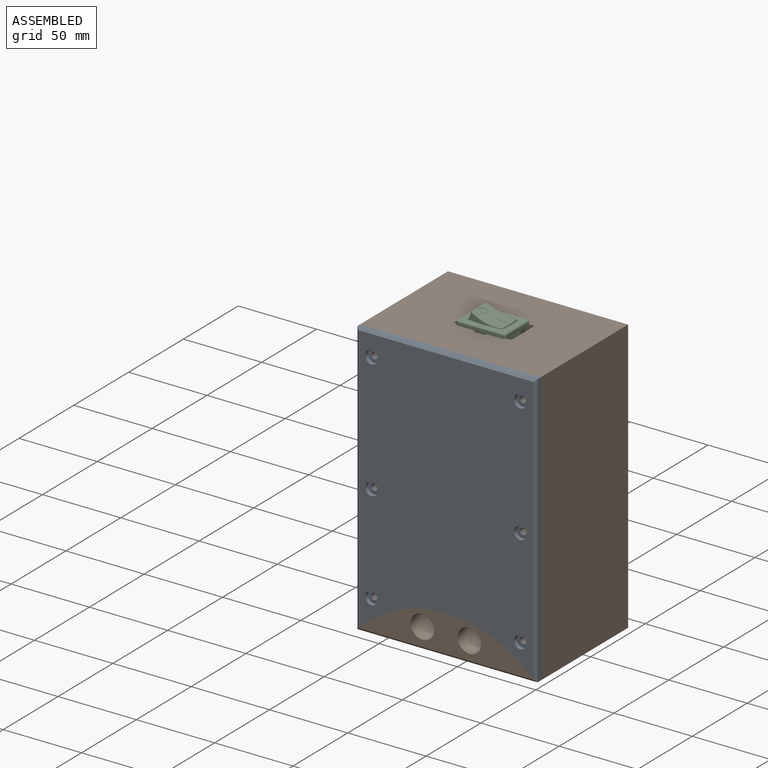
[diagram: assembled view]
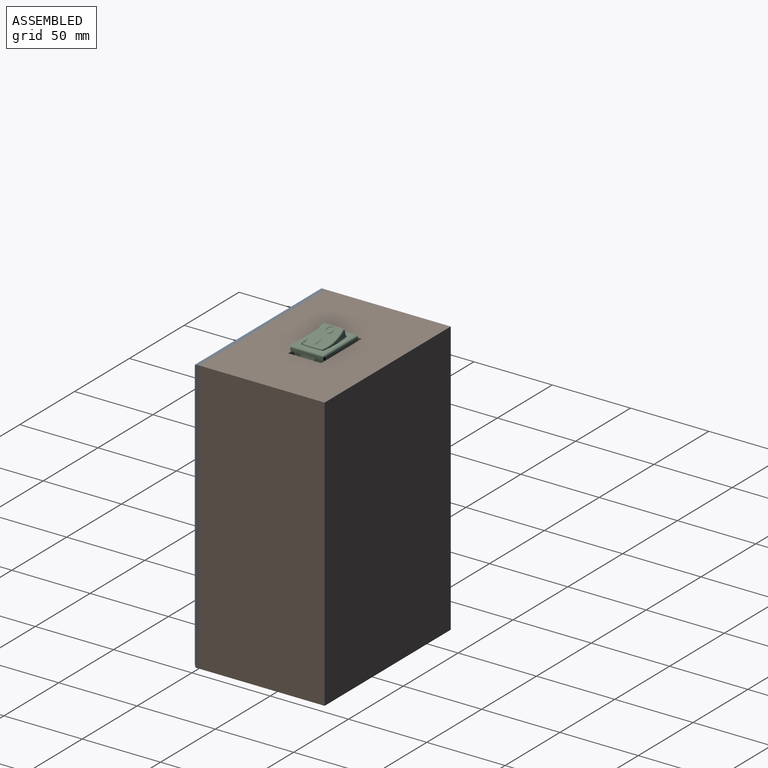
[diagram: assembled view, second angle]
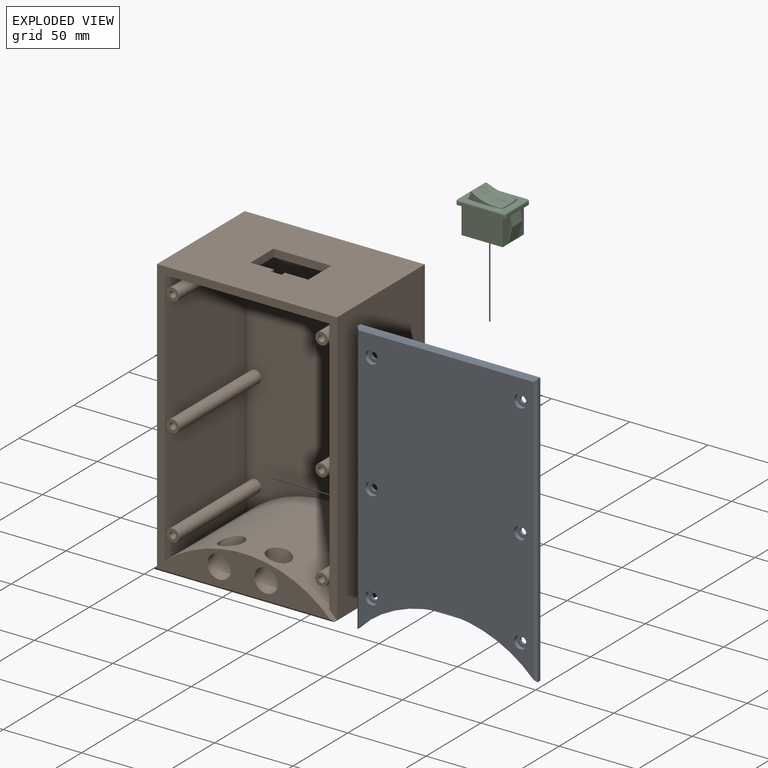
[diagram: exploded view]
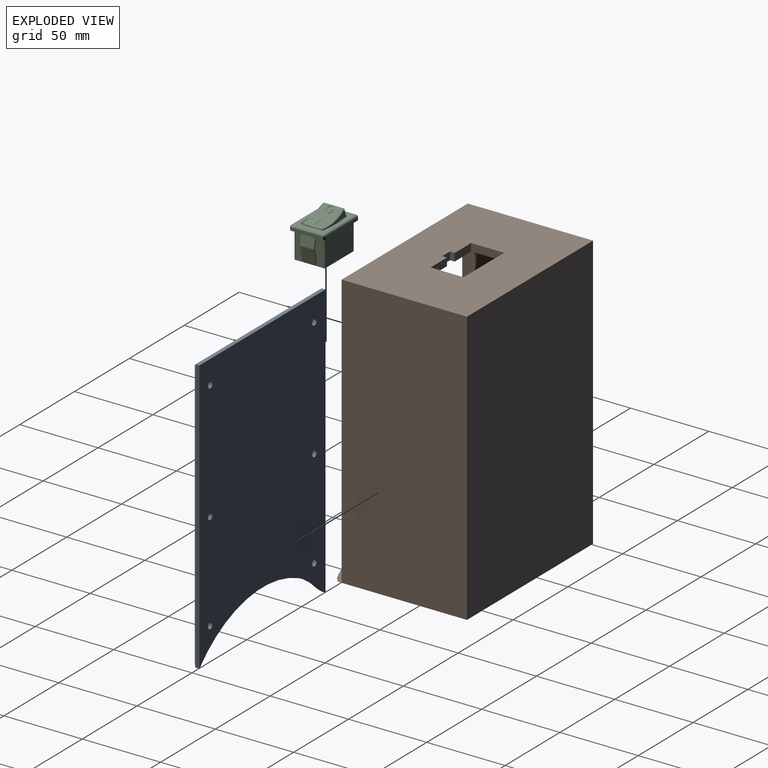
[diagram: exploded view, second angle]
ASSEMBLY  parts=3 mates=2
PART A: 27 faces, bbox 115x4x175 mm
  f0: plane 115x2.5mm, normal (0,0,1), area 287.5mm2, adj f1,f9,f11,f25
  f1: plane 175x2.5mm, normal (-1,0,0), area 437.5mm2, adj f0,f2,f11,f26
  f2: cylinder r=78.62mm len=115mm, axis (0,1,0), area 512.7mm2, adj f1,f9,f10,f11,f24,f26
  f3: cylinder r=4mm len=8mm, axis (0,1,0), area 62.8mm2, adj f10,f23
  f4: cylinder r=4mm len=8mm, axis (0,1,0), area 62.8mm2, adj f10,f21
  f5: cylinder r=4mm len=8mm, axis (0,1,0), area 62.8mm2, adj f10,f19
  f6: cylinder r=4mm len=8mm, axis (0,1,0), area 62.8mm2, adj f10,f13
  f7: cylinder r=4mm len=8mm, axis (0,1,0), area 62.8mm2, adj f10,f15
  f8: cylinder r=4mm len=8mm, axis (0,1,0), area 62.8mm2, adj f10,f17
  f9: plane 175x2.5mm, normal (1,0,0), area 437.5mm2, adj f0,f2,f11,f24
  f10: plane 171.94x112mm, normal (0,-1,0), area 17145.5mm2, adj f2,f3,f4,f5,f6,f7,f8,f24
  f11: plane 175x115mm, normal (0,1,0), area 18062.3mm2, adj f0,f1,f2,f9,f12,f14,f16,f18
  f12: cylinder r=2mm len=4mm, axis (0,1,0), area 18.8mm2, adj f11,f13
  f13: plane 8x8mm, normal (0,-1,0), area 37.7mm2, adj f6,f12
  f14: cylinder r=2mm len=4mm, axis (0,1,0), area 18.8mm2, adj f11,f15
  f15: plane 8x8mm, normal (0,-1,0), area 37.7mm2, adj f7,f14
  f16: cylinder r=2mm len=4mm, axis (0,1,0), area 18.8mm2, adj f11,f17
  f17: plane 8x8mm, normal (0,-1,0), area 37.7mm2, adj f8,f16
  f18: cylinder r=2mm len=4mm, axis (0,1,0), area 18.8mm2, adj f11,f19
  f19: plane 8x8mm, normal (0,-1,0), area 37.7mm2, adj f5,f18
  f20: cylinder r=2mm len=4mm, axis (0,1,0), area 18.8mm2, adj f11,f21
  f21: plane 8x8mm, normal (0,-1,0), area 37.7mm2, adj f4,f20
  f22: cylinder r=2mm len=4mm, axis (0,1,0), area 18.8mm2, adj f11,f23
  f23: plane 8x8mm, normal (0,-1,0), area 37.7mm2, adj f3,f22
  f24: plane 175.01x1.51mm, normal (0.71,-0.71,0), area 368mm2, adj f2,f9,f10,f25
  f25: plane 115x1.5mm, normal (0,-0.71,0.71), area 240.8mm2, adj f0,f10,f24,f26
  f26: plane 175.01x1.51mm, normal (-0.71,-0.71,0), area 368mm2, adj f1,f2,f10,f25
PART B: 47 faces, bbox 115x84x175 mm
  f0: cylinder r=2mm len=75mm, axis (0,-1,0), area 942.5mm2, adj f2,f38
  f1: cylinder r=4mm len=75mm, axis (0,-1,0), area 1885mm2, adj f2,f23
  f2: plane 8x8mm, normal (0,-1,0), area 37.7mm2, adj f0,f1
  f3: plane 4x4mm, normal (0,-1,0), area 12.6mm2, adj f5
  f4: plane 8x8mm, normal (0,-1,0), area 37.7mm2, adj f5,f6
  f5: cylinder r=2mm len=75mm, axis (0,-1,0), area 942.5mm2, adj f3,f4
  f6: cylinder r=4mm len=75mm, axis (0,-1,0), area 1885mm2, adj f4,f23
  f7: plane 4x4mm, normal (0,-1,0), area 12.6mm2, adj f9
  f8: plane 8x8mm, normal (0,-1,0), area 37.7mm2, adj f9,f10
  f9: cylinder r=2mm len=75mm, axis (0,-1,0), area 942.5mm2, adj f7,f8
  f10: cylinder r=4mm len=75mm, axis (0,-1,0), area 1885mm2, adj f8,f23
  f11: plane 4x4mm, normal (0,-1,0), area 12.6mm2, adj f13
  f12: plane 8x8mm, normal (0,-1,0), area 37.7mm2, adj f13,f14
  f13: cylinder r=2mm len=75mm, axis (0,-1,0), area 942.5mm2, adj f11,f12
  f14: cylinder r=4mm len=75mm, axis (0,-1,0), area 1885mm2, adj f12,f23
  f15: plane 4x4mm, normal (0,-1,0), area 12.6mm2, adj f18
  f16: plane 8x8mm, normal (0,-1,0), area 37.7mm2, adj f17,f18
  f17: cylinder r=4mm len=75mm, axis (0,-1,0), area 1885mm2, adj f16,f23
  f18: cylinder r=2mm len=75mm, axis (0,-1,0), area 942.5mm2, adj f15,f16
  f19: plane 4x4mm, normal (0,-1,0), area 12.6mm2, adj f21
  f20: plane 8x8mm, normal (0,-1,0), area 37.7mm2, adj f21,f22
  f21: cylinder r=2mm len=75mm, axis (0,-1,0), area 942.5mm2, adj f19,f20
  f22: cylinder r=4mm len=75mm, axis (0,-1,0), area 1885mm2, adj f20,f23
  f23: plane 165.1x105mm, normal (0,-1,0), area 15586.4mm2, adj f1,f6,f10,f14,f17,f22,f26,f27
  f24: torus R=11.75mm, axis (-1,0,0), area 791.8mm2, adj f34,f36
  f25: torus R=11.75mm, axis (-1,0,0), area 791.8mm2, adj f34,f36
  f26: plane 105x75mm, normal (0,0,-1), area 7075.4mm2, adj f23,f27,f31,f32,f39,f40,f41,f42
  f27: plane 165.1x75mm, normal (1,0,0), area 12382.2mm2, adj f23,f26,f32,f34
  f28: plane 175x80mm, normal (-1,0,0), area 14000mm2, adj f29,f32,f35,f37
  f29: plane 115x80mm, normal (0,0,1), area 8400.4mm2, adj f28,f30,f32,f37,f39,f40,f41,f42
  f30: plane 175x80mm, normal (1,0,0), area 14000mm2, adj f29,f32,f35,f37
  f31: plane 165.1x75mm, normal (-1,0,0), area 12382.2mm2, adj f23,f26,f32,f34
  f32: plane 175x115mm, normal (0,-1,0), area 2249.8mm2, adj f26,f27,f28,f29,f30,f31,f34
  f33: plane 115.01x1.51mm, normal (0,-0.71,-0.71), area 240.9mm2, adj f34,f35,f36
  f34: cylinder r=78.62mm len=115mm, axis (0,1,0), area 8769.7mm2, adj f23,f24,f25,f27,f31,f32,f33,f35
  f35: plane 115x82.5mm, normal (0,0,-1), area 9487.5mm2, adj f28,f30,f33,f34,f37
  f36: plane 112.13x23.5mm, normal (0,-1,0), area 1463.5mm2, adj f24,f25,f33,f34
  f37: plane 175x115mm, normal (0,1,0), area 20125mm2, adj f28,f29,f30,f35
  f38: plane 4x4mm, normal (0,-1,0), area 12.6mm2, adj f0
  f39: plane 21.1x5mm, normal (1,0,0), area 105.5mm2, adj f26,f29,f40,f46
  f40: plane 14.95x5mm, normal (0,1,0), area 74.7mm2, adj f26,f29,f39,f41
  f41: plane 5x3mm, normal (1,0,0), area 15mm2, adj f26,f29,f40,f42
  f42: plane 7x5mm, normal (0,1,0), area 35mm2, adj f26,f29,f41,f43
  f43: plane 5x3mm, normal (-1,0,0), area 15mm2, adj f26,f29,f42,f44
  f44: plane 14.95x5mm, normal (0,1,0), area 74.7mm2, adj f26,f29,f43,f45
  f45: plane 21.1x5mm, normal (-1,0,0), area 105.5mm2, adj f26,f29,f44,f46
  f46: plane 36.9x5mm, normal (0,-1,0), area 184.5mm2, adj f26,f29,f39,f45
PART C: 107 faces, bbox 22.8x31.8x30.3 mm
  f0: plane 26.25x17.55mm, normal (1,0,0), area 460.7mm2, adj f1,f2,f3,f4
  f1: plane 31.5x22.5mm, normal (0,0,-1), area 186.5mm2, adj f0,f2,f4,f5,f6,f7,f8,f9
  f2: plane 19.35x17.55mm, normal (0,1,0), area 305.6mm2, adj f0,f1,f3,f8,f16,f19,f22,f23
  f3: plane 26.25x19.35mm, normal (0,0,-1), area 501.9mm2, adj f0,f2,f4,f16,f24,f25,f26,f27
  f4: plane 19.35x17.55mm, normal (0,-1,0), area 305.6mm2, adj f0,f1,f3,f9,f12,f16,f32,f33
  f5: cylinder r=1.14mm len=1.86mm, axis (0,0,-1), area 3.3mm2, adj f1,f10,f14,f34
  f6: plane 20.21x1.86mm, normal (0,-1,0), area 37.5mm2, adj f1,f15,f17,f35
  f7: plane 9x6.61mm, normal (0,-0.98,-0.18), area 60.5mm2, adj f1,f8,f19,f23
  f8: plane 17.44x2.63mm, normal (1,0,0), area 13.4mm2, adj f1,f2,f7,f21,f22,f23
  f9: plane 17.44x2.63mm, normal (1,0,0), area 13.4mm2, adj f1,f4,f11,f18,f32,f33
  f10: plane 29.21x1.86mm, normal (-1,0,0), area 54.3mm2, adj f1,f5,f17,f36
  f11: plane 9x7.12mm, normal (0,-0.98,0.18), area 65.2mm2, adj f1,f9,f12,f32
  f12: plane 17.44x2.63mm, normal (-1,0,0), area 13.4mm2, adj f1,f4,f11,f18,f32,f33
  f13: cylinder r=1.14mm len=1.86mm, axis (0,0,-1), area 3.3mm2, adj f1,f14,f20,f37
  f14: plane 20.21x1.86mm, normal (0,1,0), area 37.5mm2, adj f1,f5,f13,f38
  f15: cylinder r=1.14mm len=1.86mm, axis (0,0,-1), area 3.3mm2, adj f1,f6,f20,f39
  f16: plane 26.25x17.55mm, normal (-1,0,0), area 460.7mm2, adj f1,f2,f3,f4
  f17: cylinder r=1.14mm len=1.86mm, axis (0,0,-1), area 3.3mm2, adj f1,f6,f10,f40
  f18: plane 9x6.61mm, normal (0,0.98,-0.18), area 60.5mm2, adj f1,f9,f12,f33
  f19: plane 17.44x2.63mm, normal (-1,0,0), area 13.4mm2, adj f1,f2,f7,f21,f22,f23
  f20: plane 29.21x1.86mm, normal (1,0,0), area 54.3mm2, adj f1,f13,f15,f41
  f21: plane 9x7.12mm, normal (0,0.98,0.18), area 65.2mm2, adj f1,f8,f19,f22
  f22: plane 10.32x9mm, normal (0,0.97,-0.25), area 95.8mm2, adj f2,f8,f19,f21
  f23: plane 9x7.05mm, normal (0,-0.97,0.25), area 65.5mm2, adj f2,f7,f8,f19
  f24: plane 4.03x0.9mm, normal (-1,0,0), area 3.6mm2, adj f3,f26,f27,f42
  f25: plane 4.03x0.9mm, normal (1,0,0), area 3.6mm2, adj f3,f28,f31,f43
  f26: plane 4.5x3.34mm, normal (0,1,0), area 9.6mm2, adj f3,f24,f29,f42,f44,f45,f46,f47
  f27: plane 4.5x3.34mm, normal (0,-1,0), area 9.6mm2, adj f3,f24,f29,f42,f44,f45,f46,f47
  f28: plane 4.5x3.34mm, normal (0,-1,0), area 9.6mm2, adj f3,f25,f30,f43,f48,f49,f50,f51
  f29: plane 4.03x0.9mm, normal (1,0,0), area 3.6mm2, adj f3,f26,f27,f42
  f30: plane 4.03x0.9mm, normal (-1,0,0), area 3.6mm2, adj f3,f28,f31,f43
  f31: plane 4.5x3.34mm, normal (0,1,0), area 9.6mm2, adj f3,f25,f30,f43,f48,f49,f50,f51
  f32: plane 10.32x9mm, normal (0,-0.97,-0.25), area 95.8mm2, adj f4,f9,f11,f12
  f33: plane 9x7.05mm, normal (0,0.97,0.25), area 65.5mm2, adj f4,f9,f12,f18
  f34: sphere r=1.14mm, area 1.7mm2, adj f5,f36,f38
  f35: cylinder r=1.14mm len=20.21mm, axis (1,0,0), area 36.3mm2, adj f6,f39,f40,f52
  f36: cylinder r=1.14mm len=29.21mm, axis (0,-1,0), area 52.5mm2, adj f10,f34,f40,f52
  f37: sphere r=1.14mm, area 1.3mm2, adj f13,f38,f41
  f38: cylinder r=1.14mm len=20.21mm, axis (-1,0,0), area 36.3mm2, adj f14,f34,f37,f52
  f39: sphere r=1.14mm, area 2.1mm2, adj f15,f35,f41
  f40: sphere r=1.14mm, area 1.3mm2, adj f17,f35,f36
  f41: cylinder r=1.14mm len=29.21mm, axis (0,1,0), area 52.5mm2, adj f20,f37,f39,f52
  f42: cylinder r=3.19mm len=3.34mm, axis (0,-1,0), area 3.2mm2, adj f24,f26,f27,f29
  f43: cylinder r=3.19mm len=3.34mm, axis (0,-1,0), area 3.2mm2, adj f25,f28,f30,f31
  f44: cylinder r=1.68mm len=1.92mm, axis (0,-1,0), area 1.8mm2, adj f26,f27,f46,f47
  f45: cylinder r=1.68mm len=1.92mm, axis (0,-1,0), area 1.8mm2, adj f26,f27,f46,f47
  f46: plane 2.15x0.9mm, normal (1,0,0), area 1.9mm2, adj f26,f27,f44,f45
  f47: plane 2.15x0.9mm, normal (-1,0,0), area 1.9mm2, adj f26,f27,f44,f45
  f48: cylinder r=1.68mm len=1.92mm, axis (0,-1,0), area 1.8mm2, adj f28,f31,f50,f51
  f49: cylinder r=1.68mm len=1.92mm, axis (0,-1,0), area 1.8mm2, adj f28,f31,f50,f51
  f50: plane 2.15x0.9mm, normal (-1,0,0), area 1.9mm2, adj f28,f31,f48,f49
  f51: plane 2.15x0.9mm, normal (1,0,0), area 1.9mm2, adj f28,f31,f48,f49
  f52: plane 29.21x20.21mm, normal (0,0,1), area 238.1mm2, adj f35,f36,f38,f41,f53,f54,f55,f56
  f53: cylinder r=0.57mm len=0.76mm, axis (0,0,1), area 0.6mm2, adj f52,f59,f62,f65
  f54: cylinder r=74.93mm len=20.82mm, axis (0,0,1), area 15.9mm2, adj f52,f60,f64,f65
  f55: plane 2.77x0.76mm, normal (0,1,0), area 2.1mm2, adj f52,f59,f63,f65
  f56: cylinder r=50.24mm len=2.5mm, axis (0,0,1), area 1.9mm2, adj f52,f58,f61,f65
  f57: cylinder r=50.24mm len=2.5mm, axis (0,0,1), area 1.9mm2, adj f52,f60,f61,f65
  f58: cylinder r=1.33mm len=1.16mm, axis (0,0,1), area 1.3mm2, adj f52,f56,f62,f65
  f59: cylinder r=50.24mm len=5.36mm, axis (0,0,1), area 4.1mm2, adj f52,f53,f55,f65
  f60: cylinder r=1.33mm len=1.16mm, axis (0,0,1), area 1.3mm2, adj f52,f54,f57,f65
  f61: plane 7.32x0.76mm, normal (0,-1,0), area 5.6mm2, adj f52,f56,f57,f65
  f62: cylinder r=74.93mm len=20.82mm, axis (0,0,1), area 15.9mm2, adj f52,f53,f58,f65
  f63: cylinder r=50.24mm len=5.36mm, axis (0,0,1), area 4.1mm2, adj f52,f55,f64,f65
  f64: cylinder r=0.57mm len=0.76mm, axis (0,0,1), area 0.6mm2, adj f52,f54,f63,f65
  f65: plane 23.13x16mm, normal (0,0,1), area 40.5mm2, adj f53,f54,f55,f56,f57,f58,f59,f60
  f66: cylinder r=49.67mm len=2.45mm, axis (0,0,-1), area 1.7mm2, adj f65,f73,f76,f78
  f67: cylinder r=74.36mm len=20.38mm, axis (0,0,-1), area 46.6mm2, adj f65,f70,f72,f79,f80
  f68: bspline ~0.76x0.29mm, area 0.2mm2, adj f65,f69,f77,f81
  f69: cylinder r=74.36mm len=20.38mm, axis (0,0,-1), area 42.6mm2, adj f65,f68,f73,f81,f82
  f70: bspline ~0.76x0.29mm, area 0.2mm2, adj f65,f67,f71,f80
  f71: cylinder r=49.67mm len=5.24mm, axis (0,0,-1), area 6.3mm2, adj f65,f70,f74,f80,f83
  f72: cylinder r=0.76mm len=0.69mm, axis (0,0,-1), area 0.7mm2, adj f65,f67,f75,f84
  f73: cylinder r=0.76mm len=0.69mm, axis (0,0,-1), area 0.7mm2, adj f65,f66,f69,f85
  f74: plane 2.75x0.76mm, normal (0,-1,0), area 2.1mm2, adj f65,f71,f77,f83
  f75: cylinder r=49.67mm len=2.45mm, axis (0,0,-1), area 1.7mm2, adj f65,f72,f76,f86
  f76: plane 7.27x0.7mm, normal (0,1,0), area 5.1mm2, adj f65,f66,f75,f87
  f77: cylinder r=49.67mm len=5.24mm, axis (0,0,-1), area 6.3mm2, adj f65,f68,f74,f81,f83
  f78: bspline ~2.51x0.83mm, area 2.2mm2, adj f66,f85,f87,f88
  f79: bspline ~18.7x4.89mm, area 17.3mm2, adj f67,f84,f88,f89
  f80: bspline ~4.7x2.36mm, area 4.7mm2, adj f67,f70,f71,f83,f89
  f81: bspline ~4.7x2.36mm, area 4.7mm2, adj f68,f69,f77,f83,f90
  f82: bspline ~18.7x4.89mm, area 17.3mm2, adj f69,f85,f88,f90
  f83: plane 12.61x4.82mm, normal (0,-0.93,0.36), area 55.7mm2, adj f71,f74,f77,f80,f81,f91
  f84: bspline ~0.75x0.73mm, area 0.7mm2, adj f72,f79,f86,f88
  f85: bspline ~0.75x0.73mm, area 0.7mm2, adj f73,f78,f82,f88
  f86: bspline ~2.51x0.83mm, area 2.2mm2, adj f75,f84,f87,f88
  f87: cylinder r=0.57mm len=7.27mm, axis (-1,0,0), area 6.7mm2, adj f76,f78,f86,f88
  f88: cylinder r=37.26mm len=18.81mm, axis (-1,0,0), area 234.2mm2, adj f78,f79,f82,f84,f85,f86,f87,f89
  f89: bspline ~0.95x0.78mm, area 0.8mm2, adj f79,f80,f88,f91
  f90: bspline ~0.95x0.78mm, area 0.8mm2, adj f81,f82,f88,f91
  f91: cylinder r=0.57mm len=12.34mm, axis (-1,0,0), area 11.9mm2, adj f83,f88,f89,f90
  f92: bspline ~2.61x2.49mm, area 0.7mm2, adj f88,f94,f97,f100
  f93: plane 0.73x0.19mm, normal (0,1,0), area 0.1mm2, adj f88,f96,f98,f101
  f94: bspline ~2.66x2.48mm, area 0.8mm2, adj f88,f92,f95,f100
  f95: bspline ~2.62x2.47mm, area 0.8mm2, adj f88,f94,f97,f100
  f96: plane 5.16x0.68mm, normal (1,0,0), area 1mm2, adj f88,f93,f99,f101
  f97: bspline ~2.65x2.47mm, area 0.8mm2, adj f88,f92,f95,f100
  f98: plane 5.16x0.68mm, normal (-1,0,0), area 1mm2, adj f88,f93,f99,f101
  f99: plane 0.73x0.19mm, normal (0,-1,0), area 0.1mm2, adj f88,f96,f98,f101
  f100: cylinder r=37.26mm len=4.95mm, axis (-1,0,0), area 6mm2, adj f92,f94,f95,f97,f102,f103,f104,f105
  f101: cylinder r=37.26mm len=5.16mm, axis (-1,0,0), area 3.8mm2, adj f93,f96,f98,f99
  f102: bspline ~2x1.75mm, area 0.6mm2, adj f100,f103,f104,f106
  f103: bspline ~2.07x1.74mm, area 0.6mm2, adj f100,f102,f105,f106
  f104: bspline ~2.11x1.76mm, area 0.6mm2, adj f100,f102,f105,f106
  f105: bspline ~2.03x1.73mm, area 0.7mm2, adj f100,f103,f104,f106
  f106: cylinder r=37.26mm len=3.82mm, axis (-1,0,0), area 7.2mm2, adj f102,f103,f104,f105
PLACE A rot(axis=(0.44,-0.46,-0.77),0deg) t=(-150.24,-45.38,-243.34)mm
PLACE B rot(axis=(0.44,-0.46,-0.77),0deg) t=(-150.24,-45.38,-243.34)mm
PLACE C rot(axis=(0,0,-1),90deg) t=(-208.06,-6.25,-65.34)mm
MATE fastened C.f1 <-> B.f29  axis (0,0,-1) through (-221.19,-15.93,-68.34)mm
MATE fastened B.f32 <-> A.f11  axis (0,-1,0) through (-150.24,-45.38,-68.34)mm
